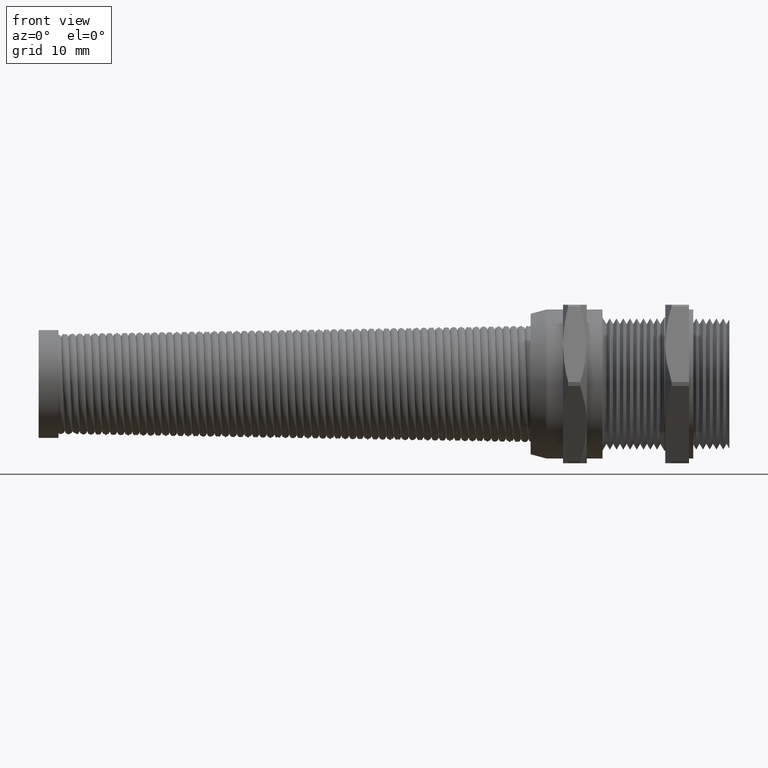
[diagram: clean part render]
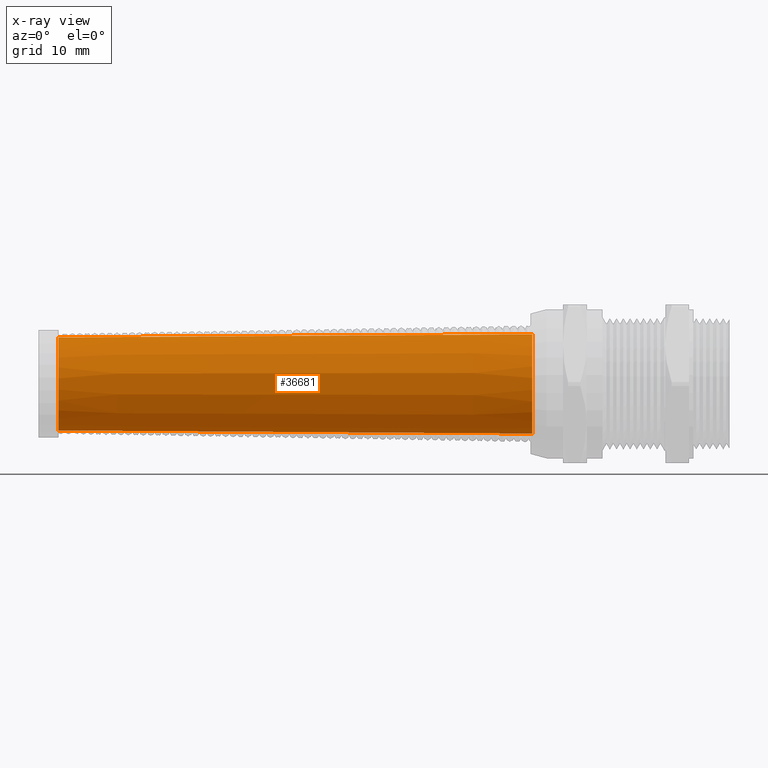
[diagram: x-ray — body ghosted, one internal face saturated and labeled with its STEP entity id]
A machine part, front view, then the same camera in x-ray: the body is ghosted and one INTERNAL B-rep face — a face not visible from any outside direction — is saturated and labeled: STEP entity #36681.
In plain terms, the highlighted conical surface has half-angle 0.38 deg.
Its self-contained STEP definition (entity closure, byte-faithful):
#5268 = EDGE_CURVE ( 'NONE', #5594, #5567, #27000, .T. ) ;
#5567 = VERTEX_POINT ( 'NONE', #27584 ) ;
#5587 = VERTEX_POINT ( 'NONE', #27622 ) ;
#5589 = VERTEX_POINT ( 'NONE', #27621 ) ;
#5591 = EDGE_CURVE ( 'NONE', #5567, #5587, #27618, .T. ) ;
#5594 = VERTEX_POINT ( 'NONE', #27602 ) ;
#5597 = EDGE_CURVE ( 'NONE', #5594, #5589, #27601, .T. ) ;
#26996 = DIRECTION ( 'NONE',  ( 0.0000000000000000000, 0.0000000000000000000, 1.000000000000000000 ) ) ;
#26997 = DIRECTION ( 'NONE',  ( 1.000000000000000000, 0.0000000000000000000, 0.0000000000000000000 ) ) ;
#26998 = CARTESIAN_POINT ( 'NONE',  ( -3.391909212598425100, 0.0000000000000000000, 0.0000000000000000000 ) ) ;
#26999 = AXIS2_PLACEMENT_3D ( 'NONE', #26998, #26997, #26996 ) ;
#27000 = CIRCLE ( 'NONE', #26999, 0.2760404384243686500 ) ;
#27584 = CARTESIAN_POINT ( 'NONE',  ( -3.391909212598425100, 0.0000000000000000000, -0.2760404384243686500 ) ) ;
#27598 = DIRECTION ( 'NONE',  ( 0.9999780067029093700, 8.122105606785352400E-019, 0.006632202535817085400 ) ) ;
#27599 = VECTOR ( 'NONE', #27598, 39.37007874015748900 ) ;
#27600 = CARTESIAN_POINT ( 'NONE',  ( -0.5799999999999998500, 3.608911652407331300E-017, 0.2946899999999996700 ) ) ;
#27601 = LINE ( 'NONE', #27600, #27599 ) ;
#27602 = CARTESIAN_POINT ( 'NONE',  ( -3.391909212598425100, 3.494716022961841500E-017, 0.2760404384243686500 ) ) ;
#27611 = DIRECTION ( 'NONE',  ( 0.9999780067029093700, 0.0000000000000000000, -0.006632202535817085400 ) ) ;
#27612 = VECTOR ( 'NONE', #27611, 39.37007874015748900 ) ;
#27613 = CARTESIAN_POINT ( 'NONE',  ( -0.5799999999999998500, 0.0000000000000000000, -0.2946899999999996700 ) ) ;
#27618 = LINE ( 'NONE', #27613, #27612 ) ;
#27621 = CARTESIAN_POINT ( 'NONE',  ( -0.5799999999999998500, 3.608911652407331300E-017, 0.2946899999999996700 ) ) ;
#27622 = CARTESIAN_POINT ( 'NONE',  ( -0.5799999999999998500, 0.0000000000000000000, -0.2946899999999996700 ) ) ;
#28436 = DIRECTION ( 'NONE',  ( 0.0000000000000000000, 0.0000000000000000000, -1.000000000000000000 ) ) ;
#28437 = DIRECTION ( 'NONE',  ( 1.000000000000000000, 0.0000000000000000000, 0.0000000000000000000 ) ) ;
#28438 = CARTESIAN_POINT ( 'NONE',  ( -0.5799999999999998500, 0.0000000000000000000, 0.0000000000000000000 ) ) ;
#28439 = AXIS2_PLACEMENT_3D ( 'NONE', #28438, #28437, #28436 ) ;
#28440 = CIRCLE ( 'NONE', #28439, 0.2946899999999996700 ) ;
#28467 = DIRECTION ( 'NONE',  ( 0.0000000000000000000, 0.0000000000000000000, -1.000000000000000000 ) ) ;
#28468 = DIRECTION ( 'NONE',  ( 1.000000000000000000, 0.0000000000000000000, 0.0000000000000000000 ) ) ;
#28469 = CARTESIAN_POINT ( 'NONE',  ( -0.5799999999999998500, 0.0000000000000000000, 0.0000000000000000000 ) ) ;
#28470 = AXIS2_PLACEMENT_3D ( 'NONE', #28469, #28468, #28467 ) ;
#28471 = CONICAL_SURFACE ( 'NONE', #28470, 0.2946899999999996700, 0.006632251157578404800 ) ;
#28473 = FACE_OUTER_BOUND ( 'NONE', #36300, .T. ) ;
#35959 = EDGE_CURVE ( 'NONE', #5589, #5587, #28440, .T. ) ;
#36161 = ORIENTED_EDGE ( 'NONE', *, *, #35959, .F. ) ;
#36265 = ORIENTED_EDGE ( 'NONE', *, *, #5597, .F. ) ;
#36300 = EDGE_LOOP ( 'NONE', ( #36265, #36314, #36420, #36161 ) ) ;
#36314 = ORIENTED_EDGE ( 'NONE', *, *, #5268, .T. ) ;
#36420 = ORIENTED_EDGE ( 'NONE', *, *, #5591, .T. ) ;
#36681 = ADVANCED_FACE ( 'NONE', ( #28473 ), #28471, .T. ) ;